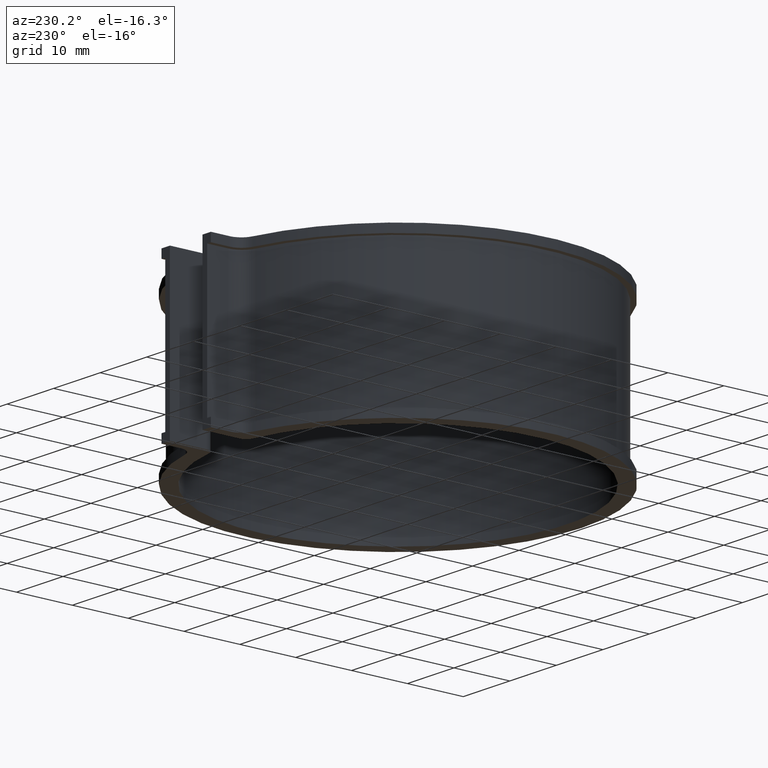
[diagram: clean part render]
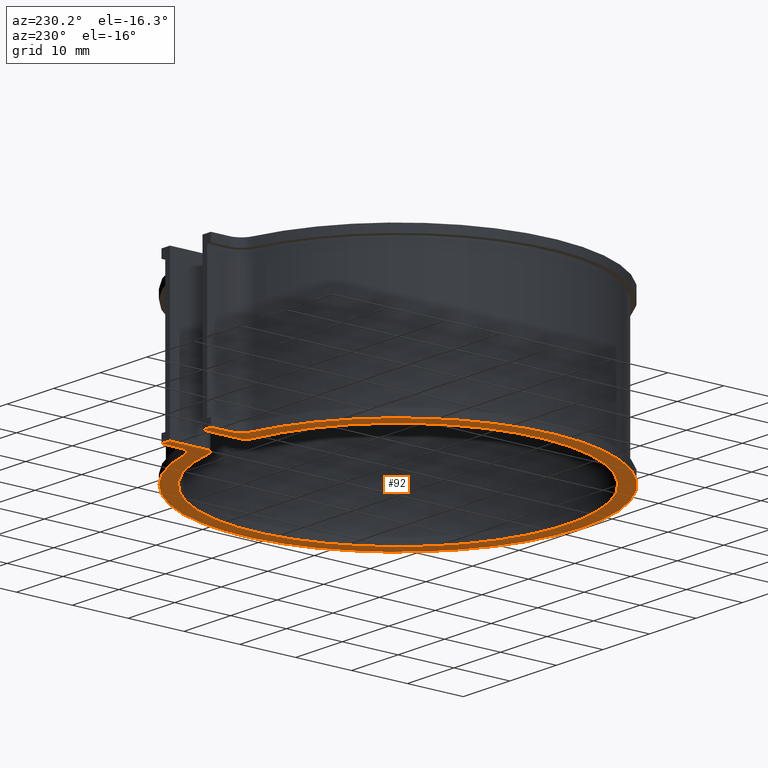
[diagram: same view with one face highlighted and labeled with its STEP entity id]
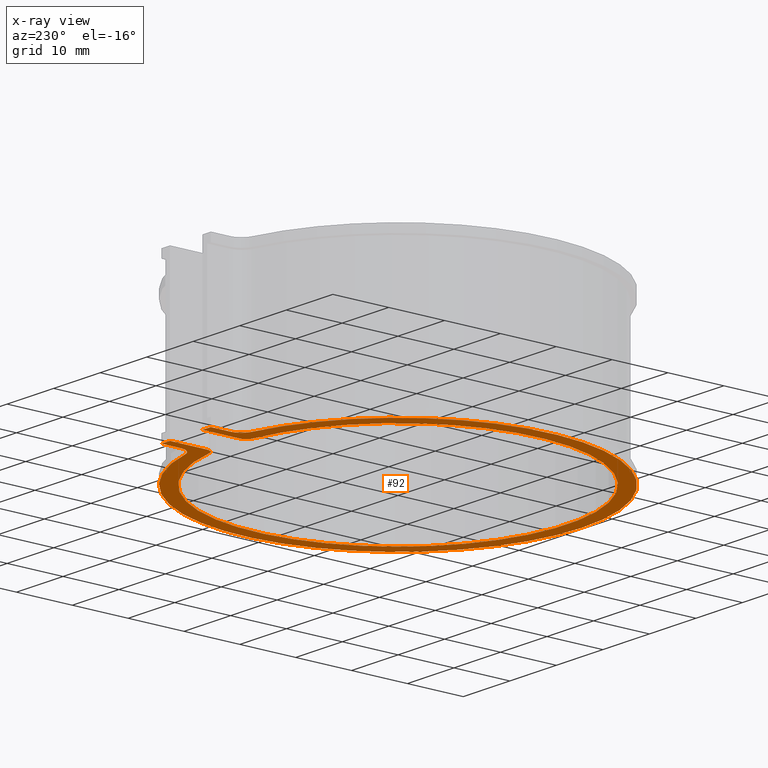
[diagram: x-ray of the same camera — body ghosted, the highlighted face saturated]
A machine part, auxiliary view. The second image highlights one B-rep face of the part: STEP entity #92.
The next image is the same camera in x-ray: the body ghosted, the highlighted face saturated — about 0% of this face is hidden behind the body in this view.
In plain terms, the highlighted planar face has unit normal (0, 0, 1).
Its self-contained STEP definition (entity closure, byte-faithful):
#92 = ADVANCED_FACE( '', ( #136 ), #137, .F. );
#136 = FACE_OUTER_BOUND( '', #188, .T. );
#137 = PLANE( '', #189 );
#188 = EDGE_LOOP( '', ( #353, #354, #355, #356, #357, #358, #359, #360, #361, #362, #363, #364 ) );
#189 = AXIS2_PLACEMENT_3D( '', #365, #366, #367 );
#353 = ORIENTED_EDGE( '', *, *, #478, .F. );
#354 = ORIENTED_EDGE( '', *, *, #483, .T. );
#355 = ORIENTED_EDGE( '', *, *, #428, .F. );
#356 = ORIENTED_EDGE( '', *, *, #491, .F. );
#357 = ORIENTED_EDGE( '', *, *, #492, .F. );
#358 = ORIENTED_EDGE( '', *, *, #474, .T. );
#359 = ORIENTED_EDGE( '', *, *, #467, .F. );
#360 = ORIENTED_EDGE( '', *, *, #470, .T. );
#361 = ORIENTED_EDGE( '', *, *, #451, .F. );
#362 = ORIENTED_EDGE( '', *, *, #449, .F. );
#363 = ORIENTED_EDGE( '', *, *, #482, .F. );
#364 = ORIENTED_EDGE( '', *, *, #493, .T. );
#365 = CARTESIAN_POINT( '', ( 0.000000000000000, 0.000000000000000, -26.5000000000000 ) );
#366 = DIRECTION( '', ( 0.000000000000000, 0.000000000000000, 1.00000000000000 ) );
#367 = DIRECTION( '', ( 0.000000000000000, 1.00000000000000, 0.000000000000000 ) );
#428 = EDGE_CURVE( '', #500, #501, #502, .T. );
#449 = EDGE_CURVE( '', #540, #542, #543, .T. );
#451 = EDGE_CURVE( '', #542, #545, #546, .T. );
#467 = EDGE_CURVE( '', #572, #573, #574, .T. );
#470 = EDGE_CURVE( '', #572, #545, #577, .T. );
#474 = EDGE_CURVE( '', #583, #573, #584, .T. );
#478 = EDGE_CURVE( '', #589, #591, #592, .T. );
#482 = EDGE_CURVE( '', #596, #540, #598, .T. );
#483 = EDGE_CURVE( '', #589, #501, #599, .F. );
#491 = EDGE_CURVE( '', #610, #500, #611, .T. );
#492 = EDGE_CURVE( '', #583, #610, #612, .T. );
#493 = EDGE_CURVE( '', #596, #591, #613, .F. );
#500 = VERTEX_POINT( '', #620 );
#501 = VERTEX_POINT( '', #621 );
#502 = LINE( '', #622, #623 );
#540 = VERTEX_POINT( '', #674 );
#542 = VERTEX_POINT( '', #677 );
#543 = LINE( '', #678, #679 );
#545 = VERTEX_POINT( '', #682 );
#546 = LINE( '', #683, #684 );
#572 = VERTEX_POINT( '', #719 );
#573 = VERTEX_POINT( '', #720 );
#574 = CIRCLE( '', #721, 32.9000000000000 );
#577 = CIRCLE( '', #726, 2.50000000000000 );
#583 = VERTEX_POINT( '', #734 );
#584 = CIRCLE( '', #735, 2.50000000000000 );
#589 = VERTEX_POINT( '', #741 );
#591 = VERTEX_POINT( '', #744 );
#592 = CIRCLE( '', #745, 30.2500000000000 );
#596 = VERTEX_POINT( '', #751 );
#598 = LINE( '', #754, #755 );
#599 = CIRCLE( '', #756, 1.50000000000000 );
#610 = VERTEX_POINT( '', #770 );
#611 = LINE( '', #771, #772 );
#612 = LINE( '', #773, #774 );
#613 = CIRCLE( '', #775, 1.50000000000000 );
#620 = CARTESIAN_POINT( '', ( 3.49999999999999, 37.9315111874219, -26.5000000000000 ) );
#621 = CARTESIAN_POINT( '', ( 3.50000000000000, 31.3538275175456, -26.5000000000000 ) );
#622 = CARTESIAN_POINT( '', ( 3.50000000000000, 37.9315111874219, -26.5000000000000 ) );
#623 = VECTOR( '', #788, 1000.00000000000 );
#674 = CARTESIAN_POINT( '', ( -3.50000000000000, 37.9315111874219, -26.5000000000000 ) );
#677 = CARTESIAN_POINT( '', ( -5.29999999999999, 37.9315111874219, -26.5000000000000 ) );
#678 = CARTESIAN_POINT( '', ( -3.50000000000000, 37.9315111874219, -26.5000000000000 ) );
#679 = VECTOR( '', #821, 1000.00000000000 );
#682 = CARTESIAN_POINT( '', ( -5.30000000000000, 34.5299869678516, -26.5000000000000 ) );
#683 = CARTESIAN_POINT( '', ( -5.30000000000000, 37.9315111874219, -26.5000000000000 ) );
#684 = VECTOR( '', #823, 1000.00000000000 );
#719 = CARTESIAN_POINT( '', ( -7.24915254237288, 32.0914285661671, -26.5000000000000 ) );
#720 = CARTESIAN_POINT( '', ( 7.24915254237288, 32.0914285661671, -26.5000000000000 ) );
#721 = AXIS2_PLACEMENT_3D( '', #851, #852, #853 );
#726 = AXIS2_PLACEMENT_3D( '', #856, #857, #858 );
#734 = CARTESIAN_POINT( '', ( 5.30000000000000, 34.5299869678516, -26.5000000000000 ) );
#735 = AXIS2_PLACEMENT_3D( '', #864, #865, #866 );
#741 = CARTESIAN_POINT( '', ( 4.76377952755906, 29.8725443277403, -26.5000000000000 ) );
#744 = CARTESIAN_POINT( '', ( -4.76377952755905, 29.8725443277403, -26.5000000000000 ) );
#745 = AXIS2_PLACEMENT_3D( '', #872, #873, #874 );
#751 = CARTESIAN_POINT( '', ( -3.50000000000000, 31.3538275175456, -26.5000000000000 ) );
#754 = CARTESIAN_POINT( '', ( -3.50000000000000, 30.0468384360152, -26.5000000000000 ) );
#755 = VECTOR( '', #878, 1000.00000000000 );
#756 = AXIS2_PLACEMENT_3D( '', #879, #880, #881 );
#770 = CARTESIAN_POINT( '', ( 5.30000000000000, 37.9315111874219, -26.5000000000000 ) );
#771 = CARTESIAN_POINT( '', ( 5.30000000000000, 37.9315111874219, -26.5000000000000 ) );
#772 = VECTOR( '', #897, 1000.00000000000 );
#773 = CARTESIAN_POINT( '', ( 5.30000000000000, 32.4702941163150, -26.5000000000000 ) );
#774 = VECTOR( '', #898, 1000.00000000000 );
#775 = AXIS2_PLACEMENT_3D( '', #899, #900, #901 );
#788 = DIRECTION( '', ( -6.12303176911189E-017, -1.00000000000000, 0.000000000000000 ) );
#821 = DIRECTION( '', ( -1.00000000000000, 0.000000000000000, 0.000000000000000 ) );
#823 = DIRECTION( '', ( -6.12303176911189E-017, -1.00000000000000, 0.000000000000000 ) );
#851 = CARTESIAN_POINT( '', ( 0.000000000000000, 0.000000000000000, -26.5000000000000 ) );
#852 = DIRECTION( '', ( 0.000000000000000, 0.000000000000000, 1.00000000000000 ) );
#853 = DIRECTION( '', ( 1.00000000000000, 0.000000000000000, 0.000000000000000 ) );
#856 = CARTESIAN_POINT( '', ( -7.80000000000000, 34.5299869678516, -26.5000000000000 ) );
#857 = DIRECTION( '', ( 0.000000000000000, 0.000000000000000, 1.00000000000000 ) );
#858 = DIRECTION( '', ( 1.00000000000000, 0.000000000000000, 0.000000000000000 ) );
#864 = CARTESIAN_POINT( '', ( 7.80000000000000, 34.5299869678516, -26.5000000000000 ) );
#865 = DIRECTION( '', ( 0.000000000000000, 0.000000000000000, 1.00000000000000 ) );
#866 = DIRECTION( '', ( 1.00000000000000, 0.000000000000000, 0.000000000000000 ) );
#872 = CARTESIAN_POINT( '', ( 0.000000000000000, 0.000000000000000, -26.5000000000000 ) );
#873 = DIRECTION( '', ( 0.000000000000000, 0.000000000000000, -1.00000000000000 ) );
#874 = DIRECTION( '', ( 1.00000000000000, 0.000000000000000, 0.000000000000000 ) );
#878 = DIRECTION( '', ( 6.12303176911189E-017, 1.00000000000000, 0.000000000000000 ) );
#879 = CARTESIAN_POINT( '', ( 5.00000000000000, 31.3538275175456, -26.5000000000000 ) );
#880 = DIRECTION( '', ( 0.000000000000000, 0.000000000000000, 1.00000000000000 ) );
#881 = DIRECTION( '', ( 1.00000000000000, 0.000000000000000, 0.000000000000000 ) );
#897 = DIRECTION( '', ( -1.00000000000000, 0.000000000000000, 0.000000000000000 ) );
#898 = DIRECTION( '', ( 6.12303176911189E-017, 1.00000000000000, 0.000000000000000 ) );
#899 = CARTESIAN_POINT( '', ( -4.99999999999999, 31.3538275175456, -26.5000000000000 ) );
#900 = DIRECTION( '', ( 0.000000000000000, 0.000000000000000, 1.00000000000000 ) );
#901 = DIRECTION( '', ( 1.00000000000000, 0.000000000000000, 0.000000000000000 ) );